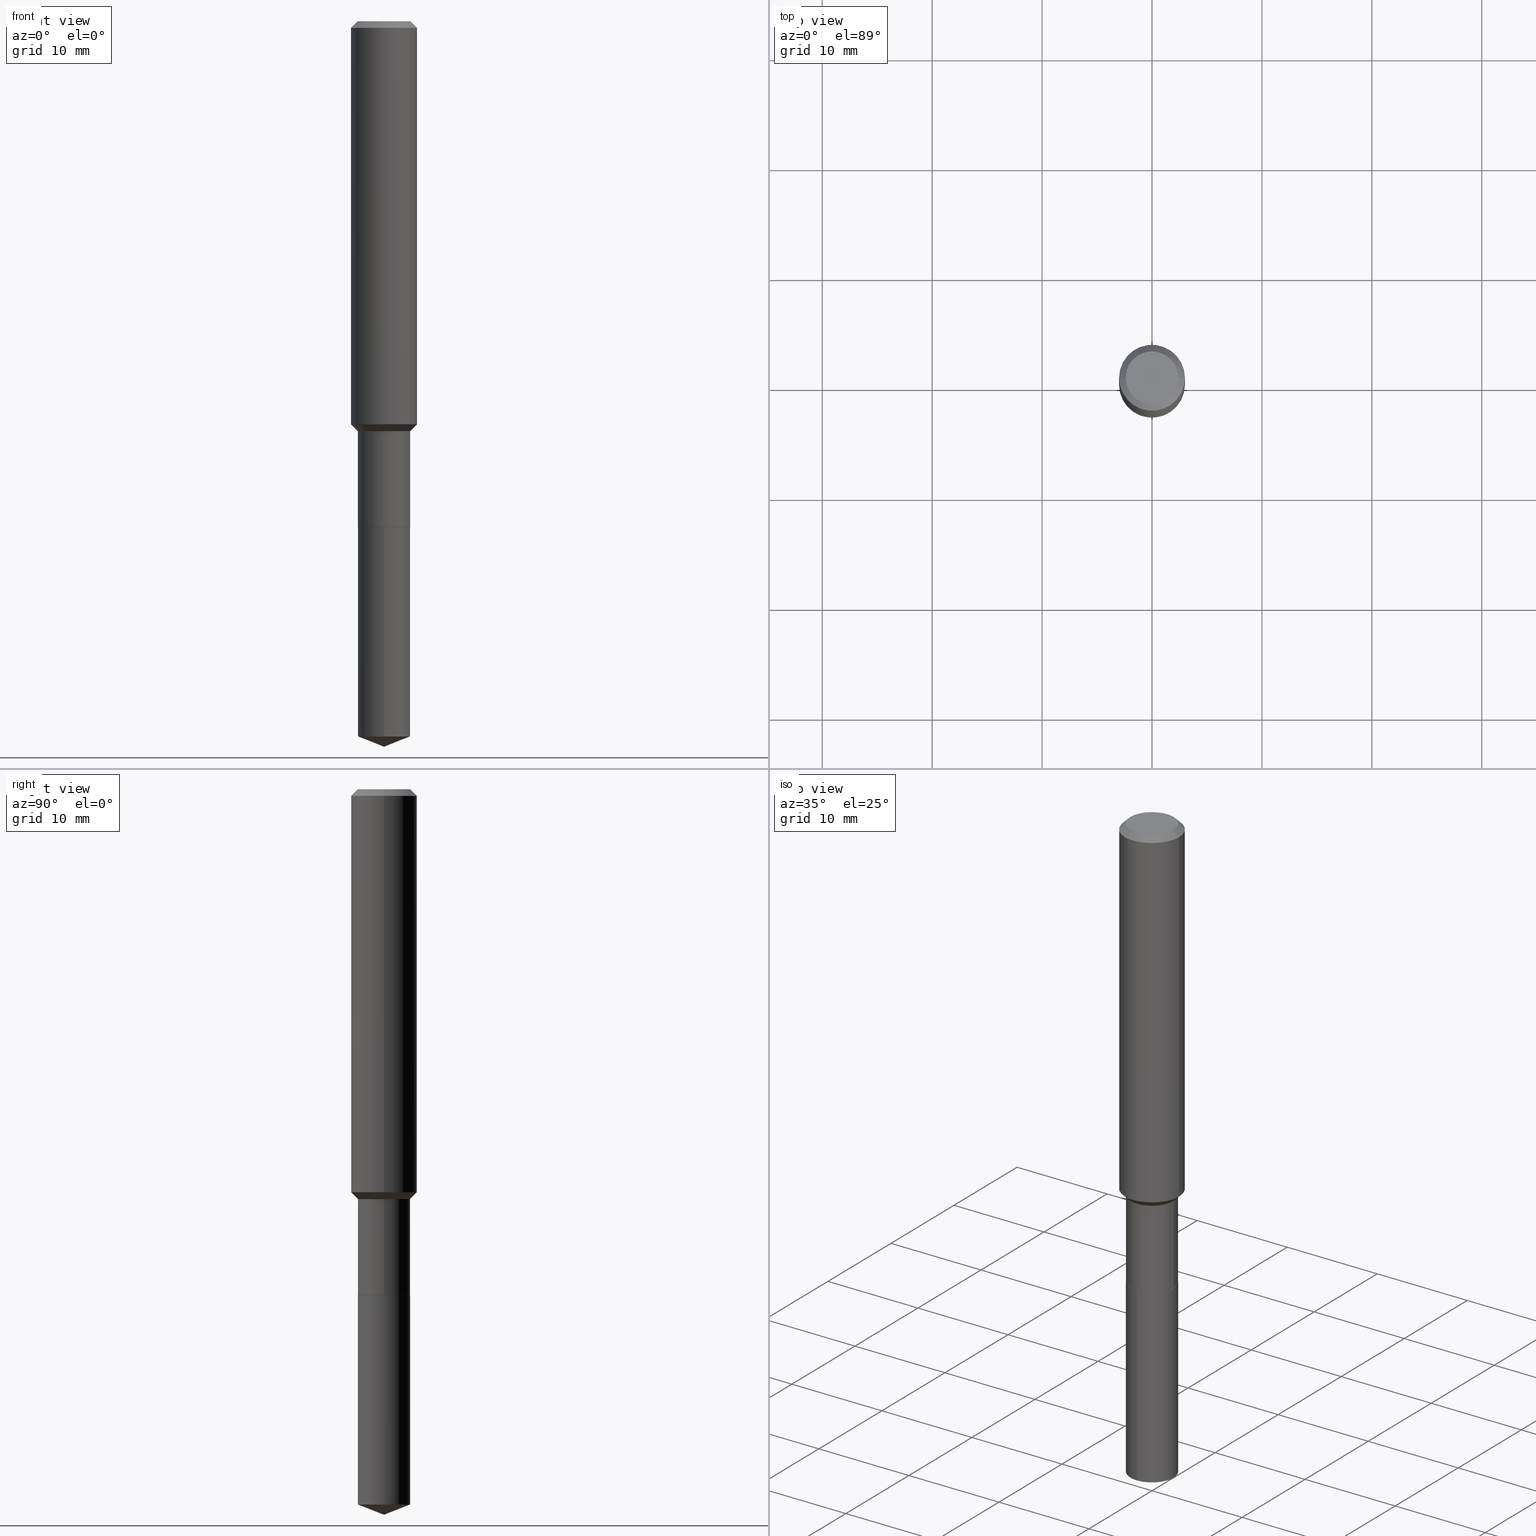
[diagram: canonical four-view strip — front | top / right | iso, engineering-drawing reading convention]
A machine part, canonical four-view strip (front | top / right | iso — engineering-drawing reading convention). The complete STEP part file that produces these views, byte-faithful:
ISO-10303-21;
HEADER;
FILE_DESCRIPTION (( 'STEP AP203' ),
    '1' );
FILE_NAME ('56406.STEP',
    '2024-04-24T17:15:24',
    ( '' ),
    ( '' ),
    'SwSTEP 2.0',
    'SolidWorks 2023',
    '' );
FILE_SCHEMA (( 'CONFIG_CONTROL_DESIGN' ));
ENDSEC;

DATA;
#1 = CARTESIAN_POINT ( 'NONE',  ( 5.776197320209327532E-31, -8.246878922347559293E-17, -0.02362000000000014088 ) ) ;
#2 = AXIS2_PLACEMENT_3D ( 'NONE', #55, #459, #127 ) ;
#3 = SECURITY_CLASSIFICATION_LEVEL ( 'unclassified' ) ;
#4 = FACE_OUTER_BOUND ( 'NONE', #97, .T. ) ;
#5 = FACE_OUTER_BOUND ( 'NONE', #53, .T. ) ;
#6 = EDGE_CURVE ( 'NONE', #241, #401, #177, .T. ) ;
#7 = LINE ( 'NONE', #224, #334 ) ;
#8 = DIRECTION ( 'NONE',  ( 1.000000000000000000, -6.982962677686265922E-15, 0.000000000000000000 ) ) ;
#9 = AXIS2_PLACEMENT_3D ( 'NONE', #240, #272, #46 ) ;
#10 = CARTESIAN_POINT ( 'NONE',  ( 4.428744008001282238E-29, -6.323072704644935995E-15, -1.810999999999999943 ) ) ;
#11 = CC_DESIGN_APPROVAL ( #150, ( #473 ) ) ;
#12 = COORDINATED_UNIVERSAL_TIME_OFFSET ( 5, 0, .BEHIND. ) ;
#13 = ORIENTED_EDGE ( 'NONE', *, *, #181, .T. ) ;
#14 = CARTESIAN_POINT ( 'NONE',  ( 3.530156495168552384E-29, -5.040127886687020563E-15, -1.443549999999999445 ) ) ;
#15 = LINE ( 'NONE', #98, #171 ) ;
#16 = ORIENTED_EDGE ( 'NONE', *, *, #208, .T. ) ;
#17 = CYLINDRICAL_SURFACE ( 'NONE', #235, 0.09375000000000001388 ) ;
#18 = VERTEX_POINT ( 'NONE', #106 ) ;
#19 = ORIENTED_EDGE ( 'NONE', *, *, #422, .T. ) ;
#20 = CARTESIAN_POINT ( 'NONE',  ( 6.603013411620882309E-46, -9.427353171913646324E-32, -2.700101262760083747E-17 ) ) ;
#21 = VECTOR ( 'NONE', #416, 39.37007874015748143 ) ;
#22 = CONICAL_SURFACE ( 'NONE', #300, 0.09374999999999995837, 0.7853981633974419507 ) ;
#23 = ORIENTED_EDGE ( 'NONE', *, *, #478, .F. ) ;
#24 = EDGE_CURVE ( 'NONE', #401, #241, #74, .T. ) ;
#25 = ORIENTED_EDGE ( 'NONE', *, *, #406, .T. ) ;
#26 = PRODUCT_DEFINITION_SHAPE ( 'NONE', 'NONE',  #299 ) ;
#27 = DIRECTION ( 'NONE',  ( -6.982962677686265922E-15, -1.000000000000000000, 2.913971193241880372E-15 ) ) ;
#28 = VECTOR ( 'NONE', #125, 39.37007874015748143 ) ;
#29 = CC_DESIGN_PERSON_AND_ORGANIZATION_ASSIGNMENT ( #408, #190, ( #473 ) ) ;
#30 = DIRECTION ( 'NONE',  ( -6.982962677686265922E-15, -1.000000000000000000, 3.498627837350006195E-15 ) ) ;
#31 =( NAMED_UNIT ( * ) SI_UNIT ( $, .STERADIAN. ) SOLID_ANGLE_UNIT ( ) );
#32 = DIRECTION ( 'NONE',  ( -2.445468806185136597E-29, 3.491481338843145583E-15, 1.000000000000000000 ) ) ;
#33 = AXIS2_PLACEMENT_3D ( 'NONE', #253, #489, #469 ) ;
#34 = DIRECTION ( 'NONE',  ( -0.7071067811865460184, 2.468850131082241283E-15, -0.7071067811865490160 ) ) ;
#35 = DIRECTION ( 'NONE',  ( -6.982962677686265922E-15, -1.000000000000000000, 3.498627837350006195E-15 ) ) ;
#36 = ADVANCED_FACE ( 'NONE', ( #441 ), #82, .F. ) ;
#37 = ORIENTED_EDGE ( 'NONE', *, *, #337, .T. ) ;
#38 = APPROVAL_STATUS ( 'not_yet_approved' ) ;
#39 = FACE_OUTER_BOUND ( 'NONE', #477, .T. ) ;
#40 = CC_DESIGN_PERSON_AND_ORGANIZATION_ASSIGNMENT ( #126, #165, ( #174 ) ) ;
#41 = APPROVAL_ROLE ( '' ) ;
#42 = CARTESIAN_POINT ( 'NONE',  ( 6.661338147751565401E-16, 0.09374999999999368561, -1.811000000000000165 ) ) ;
#43 = LINE ( 'NONE', #472, #375 ) ;
#44 = CARTESIAN_POINT ( 'NONE',  ( -0.1180999999999999966, -1.722147367022568630E-15, -0.02362000000000014088 ) ) ;
#45 = VERTEX_POINT ( 'NONE', #59 ) ;
#46 = DIRECTION ( 'NONE',  ( -6.982962677686265922E-15, -1.000000000000000000, 5.827942386483760744E-15 ) ) ;
#47 = DIRECTION ( 'NONE',  ( -2.445468806185136597E-29, 3.491481338843145583E-15, 1.000000000000000000 ) ) ;
#48 = EDGE_LOOP ( 'NONE', ( #25, #214, #228, #23 ) ) ;
#49 = AXIS2_PLACEMENT_3D ( 'NONE', #275, #421, #285 ) ;
#50 = AXIS2_PLACEMENT_3D ( 'NONE', #399, #331, #362 ) ;
#51 = CARTESIAN_POINT ( 'NONE',  ( -0.09447999999999998066, 7.009847083995354710E-16, -2.700101262760559836E-17 ) ) ;
#52 = EDGE_LOOP ( 'NONE', ( #402, #144, #398, #354 ) ) ;
#53 = EDGE_LOOP ( 'NONE', ( #433, #474, #288, #432 ) ) ;
#54 = CALENDAR_DATE ( 2024, 24, 4 ) ;
#55 = CARTESIAN_POINT ( 'NONE',  ( 6.264295491593390154E-29, -8.942900604169135523E-15, -2.561470892911099195 ) ) ;
#56 = CARTESIAN_POINT ( 'NONE',  ( 4.428744008001282238E-29, -6.323072704644935995E-15, -1.810999999999999943 ) ) ;
#57 = EDGE_LOOP ( 'NONE', ( #475, #143, #436, #232 ) ) ;
#58 = EDGE_LOOP ( 'NONE', ( #19, #296, #394, #364 ) ) ;
#59 = CARTESIAN_POINT ( 'NONE',  ( -0.1181000000000001632, -4.200976915754341577E-15, -1.443549999999999445 ) ) ;
#60 = DIRECTION ( 'NONE',  ( -2.445468806185136877E-29, 3.491481338843145188E-15, 1.000000000000000000 ) ) ;
#61 = VERTEX_POINT ( 'NONE', #44 ) ;
#62 = DIRECTION ( 'NONE',  ( -2.445468806185136597E-29, 3.491481338843145583E-15, 1.000000000000000000 ) ) ;
#63 = CIRCLE ( 'NONE', #75, 0.1181000000000001632 ) ;
#64 = CC_DESIGN_PERSON_AND_ORGANIZATION_ASSIGNMENT ( #128, #344, ( #473 ) ) ;
#65 = LOCAL_TIME ( 13, 15, 24.00000000000000000, #276 ) ;
#66 = EDGE_LOOP ( 'NONE', ( #173, #356, #133, #283 ) ) ;
#67 = CC_DESIGN_PERSON_AND_ORGANIZATION_ASSIGNMENT ( #160, #316, ( #299 ) ) ;
#68 = AXIS2_PLACEMENT_3D ( 'NONE', #136, #47, #282 ) ;
#69 = AXIS2_PLACEMENT_3D ( 'NONE', #338, #345, #30 ) ;
#70 = DIRECTION ( 'NONE',  ( 0.000000000000000000, 0.000000000000000000, 1.000000000000000000 ) ) ;
#71 = FACE_OUTER_BOUND ( 'NONE', #322, .T. ) ;
#72 = ADVANCED_FACE ( 'NONE', ( #78 ), #379, .F. ) ;
#73 = CARTESIAN_POINT ( 'NONE',  ( -6.546527510330432293E-16, -0.09375000000000632827, -1.810999999999999721 ) ) ;
#74 = CIRCLE ( 'NONE', #33, 0.09447999999999998066 ) ;
#75 = AXIS2_PLACEMENT_3D ( 'NONE', #14, #428, #465 ) ;
#76 = CC_DESIGN_SECURITY_CLASSIFICATION ( #245, ( #473 ) ) ;
#77 = CARTESIAN_POINT ( 'NONE',  ( 0.1180999999999999966, -9.071566814582237199E-16, -0.02362000000000014088 ) ) ;
#78 = FACE_OUTER_BOUND ( 'NONE', #426, .T. ) ;
#79 = ORIENTED_EDGE ( 'NONE', *, *, #490, .T. ) ;
#80 = CARTESIAN_POINT ( 'NONE',  ( 0.09447999999999998066, -7.704367267948738690E-16, -2.700101262759583929E-17 ) ) ;
#81 = PERSON ( 'UNSPECIFIED', 'UNSPECIFIED', 'UNSPECIFIED', ('UNSPECIFIED'), ('UNSPECIFIED'), ('UNSPECIFIED') ) ;
#82 = PLANE ( 'NONE',  #315 ) ;
#83 = DATE_AND_TIME ( #388, #65 ) ;
#84 = CARTESIAN_POINT ( 'NONE',  ( -0.1181000000000000799, 8.391509709326788873E-16, -5.809262341591047988E-30 ) ) ;
#85 = CIRCLE ( 'NONE', #225, 0.09374999999999998612 ) ;
#86 = LINE ( 'NONE', #281, #471 ) ;
#87 = DATE_AND_TIME ( #311, #95 ) ;
#88 = DIRECTION ( 'NONE',  ( -2.445468806185136597E-29, 3.491481338843145583E-15, 1.000000000000000000 ) ) ;
#89 = ORIENTED_EDGE ( 'NONE', *, *, #175, .F. ) ;
#90 = DIRECTION ( 'NONE',  ( -6.497071151882119836E-15, -0.9304175679820245737, 0.3665012267242972466 ) ) ;
#91 = CC_DESIGN_DATE_AND_TIME_ASSIGNMENT ( #83, #233, ( #245 ) ) ;
#92 = DIRECTION ( 'NONE',  ( -6.982962677686265922E-15, -1.000000000000000000, 2.913971193241880372E-15 ) ) ;
#93 = EDGE_LOOP ( 'NONE', ( #327, #292, #413, #105 ) ) ;
#94 = CIRCLE ( 'NONE', #254, 0.09374999999999995837 ) ;
#95 = LOCAL_TIME ( 13, 15, 24.00000000000000000, #462 ) ;
#96 = CARTESIAN_POINT ( 'NONE',  ( 3.589703660599161390E-29, -5.125145457287853703E-15, -1.467899999999999983 ) ) ;
#97 = EDGE_LOOP ( 'NONE', ( #170, #390, #207, #89 ) ) ;
#98 = CARTESIAN_POINT ( 'NONE',  ( -6.546527510330432293E-16, -0.09375000000000632827, -1.810999999999999721 ) ) ;
#99 = ORIENTED_EDGE ( 'NONE', *, *, #431, .F. ) ;
#100 = DIRECTION ( 'NONE',  ( 6.982962677686265922E-15, 1.000000000000000000, -3.490912071701818882E-15 ) ) ;
#101 = CARTESIAN_POINT ( 'NONE',  ( 0.09374999999999997224, -6.546527510330873069E-16, 4.571415727308688405E-30 ) ) ;
#102 = ORIENTED_EDGE ( 'NONE', *, *, #270, .F. ) ;
#103 = VERTEX_POINT ( 'NONE', #340 ) ;
#104 = ADVANCED_FACE ( 'NONE', ( #5 ), #403, .T. ) ;
#105 = ORIENTED_EDGE ( 'NONE', *, *, #294, .F. ) ;
#106 = CARTESIAN_POINT ( 'NONE',  ( -0.09324999999999998568, -5.657842376374531768E-15, -1.810999999999999943 ) ) ;
#107 = APPROVAL_PERSON_ORGANIZATION ( #384, #130, #41 ) ;
#108 = EDGE_CURVE ( 'NONE', #244, #290, #7, .T. ) ;
#109 = DIRECTION ( 'NONE',  ( 2.445866323305287994E-29, -3.490912071701818882E-15, -1.000000000000000000 ) ) ;
#110 = CIRCLE ( 'NONE', #365, 0.09375000000000001388 ) ;
#111 = CARTESIAN_POINT ( 'NONE',  ( 0.1181000000000000799, -8.246878922347486570E-16, 5.758764772215004644E-30 ) ) ;
#112 = APPROVAL_DATE_TIME ( #347, #307 ) ;
#113 = DIRECTION ( 'NONE',  ( 2.445468806185136597E-29, -3.491481338843145583E-15, -1.000000000000000000 ) ) ;
#114 = EDGE_CURVE ( 'NONE', #401, #61, #373, .T. ) ;
#115 = DIRECTION ( 'NONE',  ( -2.445468806185136877E-29, 3.491481338843145188E-15, 1.000000000000000000 ) ) ;
#116 = FACE_OUTER_BOUND ( 'NONE', #57, .T. ) ;
#117 = VECTOR ( 'NONE', #34, 39.37007874015748143 ) ;
#118 = FACE_OUTER_BOUND ( 'NONE', #328, .T. ) ;
#119 = CIRCLE ( 'NONE', #9, 0.09375000000000001388 ) ;
#120 = DIRECTION ( 'NONE',  ( -1.000000000000000000, 6.982962677686265922E-15, -4.876176775795935793E-29 ) ) ;
#121 = DIRECTION ( 'NONE',  ( -2.445468806185136597E-29, 3.491481338843145583E-15, 1.000000000000000000 ) ) ;
#122 = ADVANCED_FACE ( 'NONE', ( #116 ), #203, .T. ) ;
#123 = CARTESIAN_POINT ( 'NONE',  ( 3.589703660599161390E-29, -5.125145457287853703E-15, -1.467899999999999983 ) ) ;
#124 = PERSON_AND_ORGANIZATION_ROLE ( 'classification_officer' ) ;
#125 = DIRECTION ( 'NONE',  ( -0.7071067811866199593, 7.493145998870616062E-15, 0.7071067811864750752 ) ) ;
#126 = PERSON_AND_ORGANIZATION ( #81, #395 ) ;
#127 = DIRECTION ( 'NONE',  ( -6.982962677686265922E-15, -1.000000000000000000, 5.827942386483760744E-15 ) ) ;
#128 = PERSON_AND_ORGANIZATION ( #81, #395 ) ;
#129 = CYLINDRICAL_SURFACE ( 'NONE', #68, 0.09374999999999997224 ) ;
#130 = APPROVAL ( #200, 'UNSPECIFIED' ) ;
#131 =( LENGTH_UNIT ( ) NAMED_UNIT ( * ) SI_UNIT ( $, .METRE. ) );
#132 = CARTESIAN_POINT ( 'NONE',  ( 6.661338147751381005E-16, 0.09374999999999368561, -1.811000000000000165 ) ) ;
#133 = ORIENTED_EDGE ( 'NONE', *, *, #164, .F. ) ;
#134 = DIRECTION ( 'NONE',  ( 1.000000000000000000, -6.982962677686265922E-15, 4.876176775795935793E-29 ) ) ;
#135 = VERTEX_POINT ( 'NONE', #305 ) ;
#136 = CARTESIAN_POINT ( 'NONE',  ( 0.000000000000000000, 0.000000000000000000, 0.000000000000000000 ) ) ;
#137 = ORIENTED_EDGE ( 'NONE', *, *, #24, .T. ) ;
#138 = AXIS2_PLACEMENT_3D ( 'NONE', #56, #353, #92 ) ;
#139 = DIRECTION ( 'NONE',  ( 0.7071067811865430208, -2.468850131082210123E-15, 0.7071067811865520136 ) ) ;
#140 = CYLINDRICAL_SURFACE ( 'NONE', #49, 0.09374999999999997224 ) ;
#141 = ADVANCED_FACE ( 'NONE', ( #448 ), #140, .T. ) ;
#142 = ORIENTED_EDGE ( 'NONE', *, *, #337, .F. ) ;
#143 = ORIENTED_EDGE ( 'NONE', *, *, #294, .T. ) ;
#144 = ORIENTED_EDGE ( 'NONE', *, *, #443, .T. ) ;
#145 = ADVANCED_FACE ( 'NONE', ( #319 ), #129, .T. ) ;
#146 = AXIS2_PLACEMENT_3D ( 'NONE', #238, #201, #161 ) ;
#147 = CARTESIAN_POINT ( 'NONE',  ( 4.428744008001282238E-29, -6.323072704644935995E-15, -1.810999999999999943 ) ) ;
#148 = FACE_OUTER_BOUND ( 'NONE', #66, .T. ) ;
#149 = PERSON_AND_ORGANIZATION ( #81, #395 ) ;
#150 = APPROVAL ( #38, 'UNSPECIFIED' ) ;
#151 = CARTESIAN_POINT ( 'NONE',  ( 4.428744008001282238E-29, -6.323072704644935995E-15, -1.810999999999999943 ) ) ;
#152 = CARTESIAN_POINT ( 'NONE',  ( -0.1180999999999999966, 7.422191030112725094E-16, -0.02362000000000014088 ) ) ;
#153 = LINE ( 'NONE', #111, #418 ) ;
#154 = AXIS2_PLACEMENT_3D ( 'NONE', #156, #113, #158 ) ;
#155 = CARTESIAN_POINT ( 'NONE',  ( 4.428744008001282238E-29, -6.323072704644935995E-15, -1.810999999999999943 ) ) ;
#156 = CARTESIAN_POINT ( 'NONE',  ( 5.776197320209327532E-31, -8.246878922347559293E-17, -0.02362000000000014088 ) ) ;
#157 = CARTESIAN_POINT ( 'NONE',  ( 0.000000000000000000, 0.000000000000000000, 0.000000000000000000 ) ) ;
#158 = DIRECTION ( 'NONE',  ( -1.000000000000000000, 6.982962677686266711E-15, 0.000000000000000000 ) ) ;
#159 = CARTESIAN_POINT ( 'NONE',  ( 4.427521273598189436E-29, -6.321326963975514491E-15, -1.810499999999999998 ) ) ;
#160 = PERSON_AND_ORGANIZATION ( #81, #395 ) ;
#161 = DIRECTION ( 'NONE',  ( -1.000000000000000000, 6.982962677686266711E-15, 0.000000000000000000 ) ) ;
#162 = ORIENTED_EDGE ( 'NONE', *, *, #114, .T. ) ;
#163 = CIRCLE ( 'NONE', #184, 0.1180999999999999966 ) ;
#164 = EDGE_CURVE ( 'NONE', #278, #325, #220, .T. ) ;
#165 = PERSON_AND_ORGANIZATION_ROLE ( 'design_owner' ) ;
#166 = DIRECTION ( 'NONE',  ( -0.7071067811865430208, 7.493145998870338383E-15, 0.7071067811865520136 ) ) ;
#167 = EDGE_LOOP ( 'NONE', ( #215, #79 ) ) ;
#168 = EDGE_LOOP ( 'NONE', ( #359, #37, #99 ) ) ;
#169 = SHAPE_DEFINITION_REPRESENTATION ( #26, #412 ) ;
#170 = ORIENTED_EDGE ( 'NONE', *, *, #208, .F. ) ;
#171 = VECTOR ( 'NONE', #247, 39.37007874015748143 ) ;
#172 = ORIENTED_EDGE ( 'NONE', *, *, #455, .T. ) ;
#173 = ORIENTED_EDGE ( 'NONE', *, *, #431, .T. ) ;
#174 = PRODUCT ( '56406', '56406', '', ( #197 ) ) ;
#175 = EDGE_CURVE ( 'NONE', #61, #287, #189, .T. ) ;
#176 = EDGE_CURVE ( 'NONE', #103, #278, #15, .T. ) ;
#177 = CIRCLE ( 'NONE', #438, 0.09447999999999998066 ) ;
#178 = AXIS2_PLACEMENT_3D ( 'NONE', #301, #333, #411 ) ;
#179 = CIRCLE ( 'NONE', #221, 0.09324999999999998568 ) ;
#180 = EDGE_CURVE ( 'NONE', #241, #287, #211, .T. ) ;
#181 = EDGE_CURVE ( 'NONE', #217, #250, #378, .T. ) ;
#182 = DIRECTION ( 'NONE',  ( -6.982962677686265922E-15, -1.000000000000000000, 2.913971193241880372E-15 ) ) ;
#183 = CALENDAR_DATE ( 2024, 24, 4 ) ;
#184 = AXIS2_PLACEMENT_3D ( 'NONE', #1, #336, #261 ) ;
#185 = CYLINDRICAL_SURFACE ( 'NONE', #258, 0.09375000000000001388 ) ;
#186 = CARTESIAN_POINT ( 'NONE',  ( 4.428744008001282238E-29, -6.323072704644935995E-15, -1.810999999999999943 ) ) ;
#187 = EDGE_CURVE ( 'NONE', #18, #244, #269, .T. ) ;
#188 = DIRECTION ( 'NONE',  ( 0.7071067811865460184, -7.319954787623251312E-15, -0.7071067811865490160 ) ) ;
#189 = CIRCLE ( 'NONE', #324, 0.1180999999999999966 ) ;
#190 = PERSON_AND_ORGANIZATION_ROLE ( 'creator' ) ;
#191 = CYLINDRICAL_SURFACE ( 'NONE', #351, 0.1181000000000000799 ) ;
#192 = AXIS2_PLACEMENT_3D ( 'NONE', #226, #376, #35 ) ;
#193 = APPROVAL_DATE_TIME ( #87, #150 ) ;
#194 = LINE ( 'NONE', #468, #273 ) ;
#195 = DIRECTION ( 'NONE',  ( 2.438088387897960049E-29, -3.491481338843145188E-15, -1.000000000000000000 ) ) ;
#196 = VERTEX_POINT ( 'NONE', #372 ) ;
#197 = MECHANICAL_CONTEXT ( 'NONE', #306, 'mechanical' ) ;
#198 = FACE_OUTER_BOUND ( 'NONE', #58, .T. ) ;
#199 = EDGE_CURVE ( 'NONE', #287, #61, #163, .T. ) ;
#200 = APPROVAL_STATUS ( 'not_yet_approved' ) ;
#201 = DIRECTION ( 'NONE',  ( 2.445468806185136597E-29, -3.491481338843145583E-15, -1.000000000000000000 ) ) ;
#202 = ORIENTED_EDGE ( 'NONE', *, *, #219, .T. ) ;
#203 = CONICAL_SURFACE ( 'NONE', #329, 0.09374999999999995837, 0.7853981633974419507 ) ;
#204 = CIRCLE ( 'NONE', #2, 0.09375000000000001388 ) ;
#205 = DIRECTION ( 'NONE',  ( -2.445468806185136597E-29, 3.491481338843145583E-15, 1.000000000000000000 ) ) ;
#206 = DIRECTION ( 'NONE',  ( 1.000000000000000000, -6.982962677686266711E-15, 0.000000000000000000 ) ) ;
#207 = ORIENTED_EDGE ( 'NONE', *, *, #270, .T. ) ;
#208 = EDGE_CURVE ( 'NONE', #45, #61, #449, .T. ) ;
#209 = DATE_AND_TIME ( #54, #369 ) ;
#210 = LINE ( 'NONE', #132, #318 ) ;
#211 = LINE ( 'NONE', #256, #442 ) ;
#212 = ORIENTED_EDGE ( 'NONE', *, *, #367, .T. ) ;
#213 = DIRECTION ( 'NONE',  ( -2.445866323305288275E-29, 3.490912071701818882E-15, 1.000000000000000000 ) ) ;
#214 = ORIENTED_EDGE ( 'NONE', *, *, #108, .T. ) ;
#215 = ORIENTED_EDGE ( 'NONE', *, *, #164, .T. ) ;
#216 = LOCAL_TIME ( 13, 15, 24.00000000000000000, #237 ) ;
#217 = VERTEX_POINT ( 'NONE', #482 ) ;
#218 = ORIENTED_EDGE ( 'NONE', *, *, #406, .F. ) ;
#219 = EDGE_CURVE ( 'NONE', #217, #18, #461, .T. ) ;
#220 = CIRCLE ( 'NONE', #138, 0.09375000000000001388 ) ;
#221 = AXIS2_PLACEMENT_3D ( 'NONE', #348, #88, #346 ) ;
#222 = ADVANCED_FACE ( 'NONE', ( #407 ), #484, .T. ) ;
#223 = APPROVAL_STATUS ( 'not_yet_approved' ) ;
#224 = CARTESIAN_POINT ( 'NONE',  ( -0.09374999999999997224, 6.661338147750937270E-16, -4.611501647113972594E-30 ) ) ;
#225 = AXIS2_PLACEMENT_3D ( 'NONE', #159, #205, #314 ) ;
#226 = CARTESIAN_POINT ( 'NONE',  ( -8.993933058545681115E-28, 1.283656662679639301E-13, 36.77167874015748339 ) ) ;
#227 = FACE_OUTER_BOUND ( 'NONE', #168, .T. ) ;
#228 = ORIENTED_EDGE ( 'NONE', *, *, #422, .F. ) ;
#229 =( NAMED_UNIT ( * ) PLANE_ANGLE_UNIT ( ) SI_UNIT ( $, .RADIAN. ) );
#230 = DIRECTION ( 'NONE',  ( -2.445468806185136597E-29, 3.491481338843145583E-15, 1.000000000000000000 ) ) ;
#231 = MANIFOLD_SOLID_BREP ( 'Body-Move/Copy2[2]', #341 ) ;
#232 = ORIENTED_EDGE ( 'NONE', *, *, #360, .F. ) ;
#233 = DATE_TIME_ROLE ( 'classification_date' ) ;
#234 = FACE_OUTER_BOUND ( 'NONE', #366, .T. ) ;
#235 = AXIS2_PLACEMENT_3D ( 'NONE', #355, #357, #350 ) ;
#236 = ADVANCED_FACE ( 'NONE', ( #227 ), #368, .T. ) ;
#237 = COORDINATED_UNIVERSAL_TIME_OFFSET ( 5, 0, .BEHIND. ) ;
#238 = CARTESIAN_POINT ( 'NONE',  ( 5.776197320209327532E-31, -8.246878922347559293E-17, -0.02362000000000014088 ) ) ;
#239 = MANIFOLD_SOLID_BREP ( 'Body-Move/Copy2[1]', #374 ) ;
#240 = CARTESIAN_POINT ( 'NONE',  ( 6.264295491593390154E-29, -8.942900604169135523E-15, -2.561470892911099195 ) ) ;
#241 = VERTEX_POINT ( 'NONE', #80 ) ;
#242 = PLANE ( 'NONE',  #427 ) ;
#243 = CARTESIAN_POINT ( 'NONE',  ( 5.776197320209327532E-31, -8.246878922347559293E-17, -0.02362000000000014088 ) ) ;
#244 = VERTEX_POINT ( 'NONE', #488 ) ;
#245 = SECURITY_CLASSIFICATION ( '', '', #3 ) ;
#246 = DIRECTION ( 'NONE',  ( -2.445468806185136597E-29, 3.491481338843145583E-15, 1.000000000000000000 ) ) ;
#247 = DIRECTION ( 'NONE',  ( -2.445866323305287994E-29, 3.490912071701818882E-15, 1.000000000000000000 ) ) ;
#248 = ORIENTED_EDGE ( 'NONE', *, *, #181, .F. ) ;
#249 = DIRECTION ( 'NONE',  ( -2.445468806185136597E-29, 3.491481338843145583E-15, 1.000000000000000000 ) ) ;
#250 = VERTEX_POINT ( 'NONE', #409 ) ;
#251 = ORIENTED_EDGE ( 'NONE', *, *, #6, .T. ) ;
#252 = ORIENTED_EDGE ( 'NONE', *, *, #187, .T. ) ;
#253 = CARTESIAN_POINT ( 'NONE',  ( 6.603013411620882309E-46, -9.427353171913646324E-32, -2.700101262760083747E-17 ) ) ;
#254 = AXIS2_PLACEMENT_3D ( 'NONE', #414, #230, #381 ) ;
#255 = ADVANCED_FACE ( 'NONE', ( #118 ), #393, .T. ) ;
#256 = CARTESIAN_POINT ( 'NONE',  ( 0.1180999999999999966, -8.926936027602933910E-16, -0.02362000000000014088 ) ) ;
#257 = ADVANCED_FACE ( 'NONE', ( #148 ), #185, .T. ) ;
#258 = AXIS2_PLACEMENT_3D ( 'NONE', #186, #447, #182 ) ;
#259 = CARTESIAN_POINT ( 'NONE',  ( 0.09324999999999998568, -6.974233974339180492E-15, -1.810999999999999943 ) ) ;
#260 = COORDINATED_UNIVERSAL_TIME_OFFSET ( 5, 0, .BEHIND. ) ;
#261 = DIRECTION ( 'NONE',  ( 1.000000000000000000, -6.982962677686266711E-15, 0.000000000000000000 ) ) ;
#262 = DESIGN_CONTEXT ( 'detailed design', #479, 'design' ) ;
#263 = CIRCLE ( 'NONE', #50, 0.09374999999999998612 ) ;
#264 = CC_DESIGN_DATE_AND_TIME_ASSIGNMENT ( #415, #268, ( #299 ) ) ;
#265 = DIRECTION ( 'NONE',  ( 1.000000000000000000, -6.982962677686269077E-15, 0.000000000000000000 ) ) ;
#266 = CARTESIAN_POINT ( 'NONE',  ( -0.09374999999999995837, -5.057102395856590568E-15, -1.467899999999999983 ) ) ;
#267 = ADVANCED_FACE ( 'NONE', ( #4 ), #444, .T. ) ;
#268 = DATE_TIME_ROLE ( 'creation_date' ) ;
#269 = LINE ( 'NONE', #339, #28 ) ;
#270 = EDGE_CURVE ( 'NONE', #284, #287, #153, .T. ) ;
#271 = PERSON_AND_ORGANIZATION ( #81, #395 ) ;
#272 = DIRECTION ( 'NONE',  ( -2.445866323305288275E-29, 3.490912071701818882E-15, 1.000000000000000000 ) ) ;
#273 = VECTOR ( 'NONE', #423, 39.37007874015747433 ) ;
#274 = APPROVAL_PERSON_ORGANIZATION ( #271, #307, #419 ) ;
#275 = CARTESIAN_POINT ( 'NONE',  ( 0.000000000000000000, 0.000000000000000000, 0.000000000000000000 ) ) ;
#276 = COORDINATED_UNIVERSAL_TIME_OFFSET ( 5, 0, .BEHIND. ) ;
#277 = LINE ( 'NONE', #392, #439 ) ;
#278 = VERTEX_POINT ( 'NONE', #73 ) ;
#279 = ADVANCED_FACE ( 'NONE', ( #71 ), #480, .T. ) ;
#280 = APPLICATION_PROTOCOL_DEFINITION ( 'international standard', 'config_control_design', 1994, #306 ) ;
#281 = CARTESIAN_POINT ( 'NONE',  ( 0.09374999999999995837, -5.779798208320940419E-15, -1.467899999999999983 ) ) ;
#282 = DIRECTION ( 'NONE',  ( 1.000000000000000000, -6.982962677686266711E-15, 4.876176775795935793E-29 ) ) ;
#283 = ORIENTED_EDGE ( 'NONE', *, *, #176, .F. ) ;
#284 = VERTEX_POINT ( 'NONE', #308 ) ;
#285 = DIRECTION ( 'NONE',  ( 1.000000000000000000, -6.982962677686266711E-15, 4.876176775795935793E-29 ) ) ;
#286 = CIRCLE ( 'NONE', #404, 0.1181000000000001632 ) ;
#287 = VERTEX_POINT ( 'NONE', #77 ) ;
#288 = ORIENTED_EDGE ( 'NONE', *, *, #199, .T. ) ;
#289 = DIRECTION ( 'NONE',  ( -2.438088387897960049E-29, 3.491481338843145188E-15, 1.000000000000000000 ) ) ;
#290 = VERTEX_POINT ( 'NONE', #266 ) ;
#291 = ORIENTED_EDGE ( 'NONE', *, *, #24, .F. ) ;
#292 = ORIENTED_EDGE ( 'NONE', *, *, #467, .T. ) ;
#293 = ORIENTED_EDGE ( 'NONE', *, *, #467, .F. ) ;
#294 = EDGE_CURVE ( 'NONE', #290, #196, #94, .T. ) ;
#295 = ADVANCED_FACE ( 'NONE', ( #39 ), #191, .T. ) ;
#296 = ORIENTED_EDGE ( 'NONE', *, *, #332, .T. ) ;
#297 = CONICAL_SURFACE ( 'NONE', #146, 0.1180999999999999966, 0.7853981633974461696 ) ;
#298 = DIRECTION ( 'NONE',  ( 1.000000000000000000, -6.982962677686263555E-15, 0.000000000000000000 ) ) ;
#299 = PRODUCT_DEFINITION ( 'UNKNOWN', '', #473, #262 ) ;
#300 = AXIS2_PLACEMENT_3D ( 'NONE', #434, #425, #385 ) ;
#301 = CARTESIAN_POINT ( 'NONE',  ( 0.000000000000000000, 0.000000000000000000, 0.000000000000000000 ) ) ;
#302 = LENGTH_MEASURE_WITH_UNIT ( LENGTH_MEASURE( 0.02539999999999999897 ), #131 );
#303 = DIMENSIONAL_EXPONENTS ( 1.000000000000000000, 0.000000000000000000, 0.000000000000000000, 0.000000000000000000, 0.000000000000000000, 0.000000000000000000, 0.000000000000000000 ) ;
#304 = CARTESIAN_POINT ( 'NONE',  ( 4.428744008001282238E-29, -6.323072704644935995E-15, -1.810999999999999943 ) ) ;
#305 = CARTESIAN_POINT ( 'NONE',  ( 6.661338147751568359E-16, 0.09374999999999111822, -2.561470892911100083 ) ) ;
#306 = APPLICATION_CONTEXT ( 'configuration controlled 3d designs of mechanical parts and assemblies' ) ;
#307 = APPROVAL ( #223, 'UNSPECIFIED' ) ;
#308 = CARTESIAN_POINT ( 'NONE',  ( 0.1181000000000001632, -5.864815778921770403E-15, -1.443549999999999445 ) ) ;
#309 = AXIS2_PLACEMENT_3D ( 'NONE', #155, #310, #453 ) ;
#310 = DIRECTION ( 'NONE',  ( -2.445468806185136597E-29, 3.491481338843145583E-15, 1.000000000000000000 ) ) ;
#311 = CALENDAR_DATE ( 2024, 24, 4 ) ;
#312 = DIRECTION ( 'NONE',  ( -2.445468806185136597E-29, 3.491481338843145583E-15, 1.000000000000000000 ) ) ;
#313 = EDGE_CURVE ( 'NONE', #135, #325, #210, .T. ) ;
#314 = DIRECTION ( 'NONE',  ( 1.000000000000000000, -6.982962677686263555E-15, 0.000000000000000000 ) ) ;
#315 = AXIS2_PLACEMENT_3D ( 'NONE', #10, #109, #100 ) ;
#316 = PERSON_AND_ORGANIZATION_ROLE ( 'creator' ) ;
#317 = FACE_OUTER_BOUND ( 'NONE', #52, .T. ) ;
#318 = VECTOR ( 'NONE', #323, 39.37007874015748143 ) ;
#319 = FACE_OUTER_BOUND ( 'NONE', #48, .T. ) ;
#320 =( CONVERSION_BASED_UNIT ( 'INCH', #302 ) LENGTH_UNIT ( ) NAMED_UNIT ( #303 ) );
#321 = CARTESIAN_POINT ( 'NONE',  ( 4.428744008001282238E-29, -6.323072704644935995E-15, -1.810999999999999943 ) ) ;
#322 = EDGE_LOOP ( 'NONE', ( #142, #212, #435 ) ) ;
#323 = DIRECTION ( 'NONE',  ( -2.445866323305287994E-29, 3.490912071701818882E-15, 1.000000000000000000 ) ) ;
#324 = AXIS2_PLACEMENT_3D ( 'NONE', #243, #396, #206 ) ;
#325 = VERTEX_POINT ( 'NONE', #42 ) ;
#326 = ADVANCED_FACE ( 'NONE', ( #317 ), #17, .T. ) ;
#327 = ORIENTED_EDGE ( 'NONE', *, *, #108, .F. ) ;
#328 = EDGE_LOOP ( 'NONE', ( #202, #252, #218, #248 ) ) ;
#329 = AXIS2_PLACEMENT_3D ( 'NONE', #123, #377, #487 ) ;
#330 = VECTOR ( 'NONE', #60, 39.37007874015748143 ) ;
#331 = DIRECTION ( 'NONE',  ( -2.445468806185136597E-29, 3.491481338843145583E-15, 1.000000000000000000 ) ) ;
#332 = EDGE_CURVE ( 'NONE', #290, #45, #43, .T. ) ;
#333 = DIRECTION ( 'NONE',  ( -2.445468806185136597E-29, 3.491481338843145583E-15, 1.000000000000000000 ) ) ;
#334 = VECTOR ( 'NONE', #454, 39.37007874015748143 ) ;
#335 = CC_DESIGN_APPROVAL ( #130, ( #245 ) ) ;
#336 = DIRECTION ( 'NONE',  ( -2.445468806185136597E-29, 3.491481338843145583E-15, 1.000000000000000000 ) ) ;
#337 = EDGE_CURVE ( 'NONE', #430, #135, #194, .T. ) ;
#338 = CARTESIAN_POINT ( 'NONE',  ( -8.993933058545681115E-28, 1.283656662679639301E-13, 36.77167874015748339 ) ) ;
#339 = CARTESIAN_POINT ( 'NONE',  ( -0.09324999999999998568, -5.660491603548642180E-15, -1.810999999999999943 ) ) ;
#340 = CARTESIAN_POINT ( 'NONE',  ( -6.546527510330251841E-16, -0.09375000000000899281, -2.561470892911098751 ) ) ;
#341 = CLOSED_SHELL ( 'NONE', ( #255, #104, #295, #380, #145, #141, #122, #267, #446, #72, #343, #222 ) ) ;
#342 = VECTOR ( 'NONE', #370, 39.37007874015748143 ) ;
#343 = ADVANCED_FACE ( 'NONE', ( #234 ), #242, .F. ) ;
#344 = PERSON_AND_ORGANIZATION_ROLE ( 'design_supplier' ) ;
#345 = DIRECTION ( 'NONE',  ( -2.445866323305288275E-29, 3.490912071701818882E-15, 1.000000000000000000 ) ) ;
#346 = DIRECTION ( 'NONE',  ( 1.000000000000000000, -6.982962677686269077E-15, 0.000000000000000000 ) ) ;
#347 = DATE_AND_TIME ( #386, #216 ) ;
#348 = CARTESIAN_POINT ( 'NONE',  ( 4.428744008001282238E-29, -6.323072704644935995E-15, -1.810999999999999943 ) ) ;
#349 = CARTESIAN_POINT ( 'NONE',  ( 0.000000000000000000, 0.000000000000000000, 0.000000000000000000 ) ) ;
#350 = DIRECTION ( 'NONE',  ( -6.982962677686265922E-15, -1.000000000000000000, 2.913971193241880372E-15 ) ) ;
#351 = AXIS2_PLACEMENT_3D ( 'NONE', #157, #312, #458 ) ;
#352 = EDGE_LOOP ( 'NONE', ( #424, #291, #162, #358 ) ) ;
#353 = DIRECTION ( 'NONE',  ( -2.445866323305288275E-29, 3.490912071701818882E-15, 1.000000000000000000 ) ) ;
#354 = ORIENTED_EDGE ( 'NONE', *, *, #490, .F. ) ;
#355 = CARTESIAN_POINT ( 'NONE',  ( 4.428744008001282238E-29, -6.323072704644935995E-15, -1.810999999999999943 ) ) ;
#356 = ORIENTED_EDGE ( 'NONE', *, *, #313, .T. ) ;
#357 = DIRECTION ( 'NONE',  ( -2.445866323305288275E-29, 3.490912071701818882E-15, 1.000000000000000000 ) ) ;
#358 = ORIENTED_EDGE ( 'NONE', *, *, #175, .T. ) ;
#359 = ORIENTED_EDGE ( 'NONE', *, *, #367, .F. ) ;
#360 = EDGE_CURVE ( 'NONE', #45, #284, #63, .T. ) ;
#361 = APPROVAL_DATE_TIME ( #209, #130 ) ;
#362 = DIRECTION ( 'NONE',  ( 1.000000000000000000, -6.982962677686263555E-15, 0.000000000000000000 ) ) ;
#363 = AXIS2_PLACEMENT_3D ( 'NONE', #96, #246, #8 ) ;
#364 = ORIENTED_EDGE ( 'NONE', *, *, #371, .F. ) ;
#365 = AXIS2_PLACEMENT_3D ( 'NONE', #147, #213, #27 ) ;
#366 = EDGE_LOOP ( 'NONE', ( #382, #466 ) ) ;
#367 = EDGE_CURVE ( 'NONE', #430, #103, #277, .T. ) ;
#368 = CONICAL_SURFACE ( 'NONE', #69, 99.94676754583991851, 1.195550537616119291 ) ;
#369 = LOCAL_TIME ( 13, 15, 24.00000000000000000, #12 ) ;
#370 = DIRECTION ( 'NONE',  ( -2.445468806185136877E-29, 3.491481338843145188E-15, 1.000000000000000000 ) ) ;
#371 = EDGE_CURVE ( 'NONE', #196, #284, #86, .T. ) ;
#372 = CARTESIAN_POINT ( 'NONE',  ( 0.09374999999999995837, -5.779798208320940419E-15, -1.467899999999999983 ) ) ;
#373 = LINE ( 'NONE', #152, #117 ) ;
#374 = CLOSED_SHELL ( 'NONE', ( #257, #236, #279, #326, #36 ) ) ;
#375 = VECTOR ( 'NONE', #166, 39.37007874015748143 ) ;
#376 = DIRECTION ( 'NONE',  ( -2.445866323305288275E-29, 3.490912071701818882E-15, 1.000000000000000000 ) ) ;
#377 = DIRECTION ( 'NONE',  ( -2.445468806185136597E-29, 3.491481338843145583E-15, 1.000000000000000000 ) ) ;
#378 = LINE ( 'NONE', #259, #21 ) ;
#379 = PLANE ( 'NONE',  #450 ) ;
#380 = ADVANCED_FACE ( 'NONE', ( #198 ), #22, .T. ) ;
#381 = DIRECTION ( 'NONE',  ( 1.000000000000000000, -6.982962677686265922E-15, 0.000000000000000000 ) ) ;
#382 = ORIENTED_EDGE ( 'NONE', *, *, #219, .F. ) ;
#383 = AXIS2_PLACEMENT_3D ( 'NONE', #304, #32, #265 ) ;
#384 = PERSON_AND_ORGANIZATION ( #81, #395 ) ;
#385 = DIRECTION ( 'NONE',  ( 1.000000000000000000, -6.982962677686265922E-15, 0.000000000000000000 ) ) ;
#386 = CALENDAR_DATE ( 2024, 24, 4 ) ;
#387 = UNCERTAINTY_MEASURE_WITH_UNIT (LENGTH_MEASURE( 1.000000000000000082E-05 ), #320, 'distance_accuracy_value', 'NONE');
#388 = CALENDAR_DATE ( 2024, 24, 4 ) ;
#389 = EDGE_CURVE ( 'NONE', #18, #217, #179, .T. ) ;
#390 = ORIENTED_EDGE ( 'NONE', *, *, #360, .T. ) ;
#391 = AXIS2_PLACEMENT_3D ( 'NONE', #151, #121, #486 ) ;
#392 = CARTESIAN_POINT ( 'NONE',  ( 6.353899247467270624E-29, -9.072847812695893785E-15, -2.598399999999999821 ) ) ;
#393 = CONICAL_SURFACE ( 'NONE', #383, 0.09324999999999998568, 0.7853981633975507526 ) ;
#394 = ORIENTED_EDGE ( 'NONE', *, *, #455, .F. ) ;
#395 = ORGANIZATION ( 'UNSPECIFIED', 'UNSPECIFIED', '' ) ;
#396 = DIRECTION ( 'NONE',  ( -2.445468806185136597E-29, 3.491481338843145583E-15, 1.000000000000000000 ) ) ;
#397 = CARTESIAN_POINT ( 'NONE',  ( 6.355339054476460416E-29, -9.070785927110006461E-15, -2.598399999999999821 ) ) ;
#398 = ORIENTED_EDGE ( 'NONE', *, *, #176, .T. ) ;
#399 = CARTESIAN_POINT ( 'NONE',  ( 4.427521273598189436E-29, -6.321326963975514491E-15, -1.810499999999999998 ) ) ;
#400 = ORIENTED_EDGE ( 'NONE', *, *, #187, .F. ) ;
#401 = VERTEX_POINT ( 'NONE', #51 ) ;
#402 = ORIENTED_EDGE ( 'NONE', *, *, #313, .F. ) ;
#403 = CONICAL_SURFACE ( 'NONE', #154, 0.1180999999999999966, 0.7853981633974461696 ) ;
#404 = AXIS2_PLACEMENT_3D ( 'NONE', #463, #249, #298 ) ;
#405 = LOCAL_TIME ( 13, 15, 24.00000000000000000, #260 ) ;
#406 = EDGE_CURVE ( 'NONE', #250, #244, #85, .T. ) ;
#407 = FACE_OUTER_BOUND ( 'NONE', #456, .T. ) ;
#408 = PERSON_AND_ORGANIZATION ( #81, #395 ) ;
#409 = CARTESIAN_POINT ( 'NONE',  ( 0.09374999999999998612, -6.975979715008601996E-15, -1.810499999999999998 ) ) ;
#410 = APPROVAL_PERSON_ORGANIZATION ( #149, #150, #464 ) ;
#411 = DIRECTION ( 'NONE',  ( 1.000000000000000000, -6.982962677686266711E-15, 4.876176775795936353E-29 ) ) ;
#412 = ADVANCED_BREP_SHAPE_REPRESENTATION ( '56406', ( #239, #231, #429 ), #452 ) ;
#413 = ORIENTED_EDGE ( 'NONE', *, *, #478, .T. ) ;
#414 = CARTESIAN_POINT ( 'NONE',  ( 3.589703660599161390E-29, -5.125145457287853703E-15, -1.467899999999999983 ) ) ;
#415 = DATE_AND_TIME ( #183, #405 ) ;
#416 = DIRECTION ( 'NONE',  ( 0.7071067811866199593, -2.468850131083015945E-15, 0.7071067811864750752 ) ) ;
#417 = CARTESIAN_POINT ( 'NONE',  ( 3.301506705810441154E-46, -4.713676585956823162E-32, -1.350050631380041873E-17 ) ) ;
#418 = VECTOR ( 'NONE', #115, 39.37007874015748143 ) ;
#419 = APPROVAL_ROLE ( '' ) ;
#420 = FACE_OUTER_BOUND ( 'NONE', #352, .T. ) ;
#421 = DIRECTION ( 'NONE',  ( -2.445468806185136597E-29, 3.491481338843145583E-15, 1.000000000000000000 ) ) ;
#422 = EDGE_CURVE ( 'NONE', #196, #290, #451, .T. ) ;
#423 = DIRECTION ( 'NONE',  ( 6.611014441532068167E-15, 0.9304175679820272382, 0.3665012267242907518 ) ) ;
#424 = ORIENTED_EDGE ( 'NONE', *, *, #180, .F. ) ;
#425 = DIRECTION ( 'NONE',  ( -2.445468806185136597E-29, 3.491481338843145583E-15, 1.000000000000000000 ) ) ;
#426 = EDGE_LOOP ( 'NONE', ( #137, #251 ) ) ;
#427 = AXIS2_PLACEMENT_3D ( 'NONE', #321, #289, #134 ) ;
#428 = DIRECTION ( 'NONE',  ( -2.445468806185136597E-29, 3.491481338843145583E-15, 1.000000000000000000 ) ) ;
#429 = AXIS2_PLACEMENT_3D ( 'NONE', #349, #70, #483 ) ;
#430 = VERTEX_POINT ( 'NONE', #397 ) ;
#431 = EDGE_CURVE ( 'NONE', #103, #135, #204, .T. ) ;
#432 = ORIENTED_EDGE ( 'NONE', *, *, #114, .F. ) ;
#433 = ORIENTED_EDGE ( 'NONE', *, *, #6, .F. ) ;
#434 = CARTESIAN_POINT ( 'NONE',  ( 3.589703660599161390E-29, -5.125145457287853703E-15, -1.467899999999999983 ) ) ;
#435 = ORIENTED_EDGE ( 'NONE', *, *, #443, .F. ) ;
#436 = ORIENTED_EDGE ( 'NONE', *, *, #371, .T. ) ;
#437 = ORIENTED_EDGE ( 'NONE', *, *, #199, .F. ) ;
#438 = AXIS2_PLACEMENT_3D ( 'NONE', #20, #62, #476 ) ;
#439 = VECTOR ( 'NONE', #90, 39.37007874015748854 ) ;
#440 = PRODUCT_RELATED_PRODUCT_CATEGORY ( 'detail', '', ( #174 ) ) ;
#441 = FACE_OUTER_BOUND ( 'NONE', #167, .T. ) ;
#442 = VECTOR ( 'NONE', #188, 39.37007874015748143 ) ;
#443 = EDGE_CURVE ( 'NONE', #135, #103, #119, .T. ) ;
#444 = CYLINDRICAL_SURFACE ( 'NONE', #178, 0.1181000000000000799 ) ;
#445 = APPLICATION_PROTOCOL_DEFINITION ( 'international standard', 'config_control_design', 1994, #479 ) ;
#446 = ADVANCED_FACE ( 'NONE', ( #420 ), #297, .T. ) ;
#447 = DIRECTION ( 'NONE',  ( -2.445866323305288275E-29, 3.490912071701818882E-15, 1.000000000000000000 ) ) ;
#448 = FACE_OUTER_BOUND ( 'NONE', #93, .T. ) ;
#449 = LINE ( 'NONE', #84, #342 ) ;
#450 = AXIS2_PLACEMENT_3D ( 'NONE', #417, #195, #120 ) ;
#451 = CIRCLE ( 'NONE', #363, 0.09374999999999995837 ) ;
#452 =( GEOMETRIC_REPRESENTATION_CONTEXT ( 3 ) GLOBAL_UNCERTAINTY_ASSIGNED_CONTEXT ( ( #387 ) ) GLOBAL_UNIT_ASSIGNED_CONTEXT ( ( #320, #229, #31 ) ) REPRESENTATION_CONTEXT ( 'NONE', 'WORKASPACE' ) );
#453 = DIRECTION ( 'NONE',  ( 1.000000000000000000, -6.982962677686269077E-15, 0.000000000000000000 ) ) ;
#454 = DIRECTION ( 'NONE',  ( -2.445468806185136877E-29, 3.491481338843145188E-15, 1.000000000000000000 ) ) ;
#455 = EDGE_CURVE ( 'NONE', #284, #45, #286, .T. ) ;
#456 = EDGE_LOOP ( 'NONE', ( #400, #470, #13, #293 ) ) ;
#457 = PERSON_AND_ORGANIZATION ( #81, #395 ) ;
#458 = DIRECTION ( 'NONE',  ( 1.000000000000000000, -6.982962677686266711E-15, 4.876176775795936353E-29 ) ) ;
#459 = DIRECTION ( 'NONE',  ( -2.445866323305288275E-29, 3.490912071701818882E-15, 1.000000000000000000 ) ) ;
#460 = CC_DESIGN_PERSON_AND_ORGANIZATION_ASSIGNMENT ( #457, #124, ( #245 ) ) ;
#461 = CIRCLE ( 'NONE', #309, 0.09324999999999998568 ) ;
#462 = COORDINATED_UNIVERSAL_TIME_OFFSET ( 5, 0, .BEHIND. ) ;
#463 = CARTESIAN_POINT ( 'NONE',  ( 3.530156495168552384E-29, -5.040127886687020563E-15, -1.443549999999999445 ) ) ;
#464 = APPROVAL_ROLE ( '' ) ;
#465 = DIRECTION ( 'NONE',  ( 1.000000000000000000, -6.982962677686263555E-15, 0.000000000000000000 ) ) ;
#466 = ORIENTED_EDGE ( 'NONE', *, *, #389, .F. ) ;
#467 = EDGE_CURVE ( 'NONE', #244, #250, #263, .T. ) ;
#468 = CARTESIAN_POINT ( 'NONE',  ( 6.355351679884375868E-29, -9.070785927110006461E-15, -2.598399999999999821 ) ) ;
#469 = DIRECTION ( 'NONE',  ( 1.000000000000000000, -6.982962677686267499E-15, 4.875432709231658792E-29 ) ) ;
#470 = ORIENTED_EDGE ( 'NONE', *, *, #389, .T. ) ;
#471 = VECTOR ( 'NONE', #139, 39.37007874015748143 ) ;
#472 = CARTESIAN_POINT ( 'NONE',  ( -0.09374999999999995837, -4.459011642512759779E-15, -1.467899999999999983 ) ) ;
#473 = PRODUCT_DEFINITION_FORMATION_WITH_SPECIFIED_SOURCE ( 'ANY', '', #174, .NOT_KNOWN. ) ;
#474 = ORIENTED_EDGE ( 'NONE', *, *, #180, .T. ) ;
#475 = ORIENTED_EDGE ( 'NONE', *, *, #332, .F. ) ;
#476 = DIRECTION ( 'NONE',  ( 1.000000000000000000, -6.982962677686267499E-15, 4.875432709231658792E-29 ) ) ;
#477 = EDGE_LOOP ( 'NONE', ( #172, #16, #437, #102 ) ) ;
#478 = EDGE_CURVE ( 'NONE', #250, #196, #481, .T. ) ;
#479 = APPLICATION_CONTEXT ( 'configuration controlled 3d designs of mechanical parts and assemblies' ) ;
#480 = CONICAL_SURFACE ( 'NONE', #192, 99.94676754583991851, 1.195550537616119291 ) ;
#481 = LINE ( 'NONE', #101, #330 ) ;
#482 = CARTESIAN_POINT ( 'NONE',  ( 0.09324999999999998568, -6.974233974339180492E-15, -1.810999999999999943 ) ) ;
#483 = DIRECTION ( 'NONE',  ( 1.000000000000000000, 0.000000000000000000, 0.000000000000000000 ) ) ;
#484 = CONICAL_SURFACE ( 'NONE', #391, 0.09324999999999998568, 0.7853981633975507526 ) ;
#485 = CC_DESIGN_APPROVAL ( #307, ( #299 ) ) ;
#486 = DIRECTION ( 'NONE',  ( 1.000000000000000000, -6.982962677686269077E-15, 0.000000000000000000 ) ) ;
#487 = DIRECTION ( 'NONE',  ( 1.000000000000000000, -6.982962677686265922E-15, 0.000000000000000000 ) ) ;
#488 = CARTESIAN_POINT ( 'NONE',  ( -0.09374999999999998612, -5.057102395856590568E-15, -1.810499999999999998 ) ) ;
#489 = DIRECTION ( 'NONE',  ( -2.445468806185136597E-29, 3.491481338843145583E-15, 1.000000000000000000 ) ) ;
#490 = EDGE_CURVE ( 'NONE', #325, #278, #110, .T. ) ;
ENDSEC;
END-ISO-10303-21;
